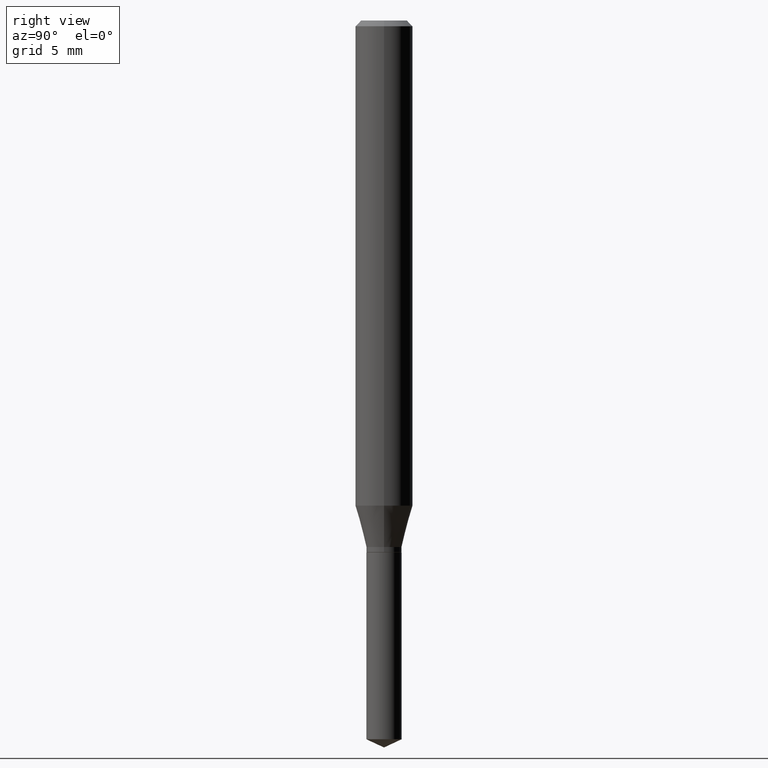
[diagram: clean part render]
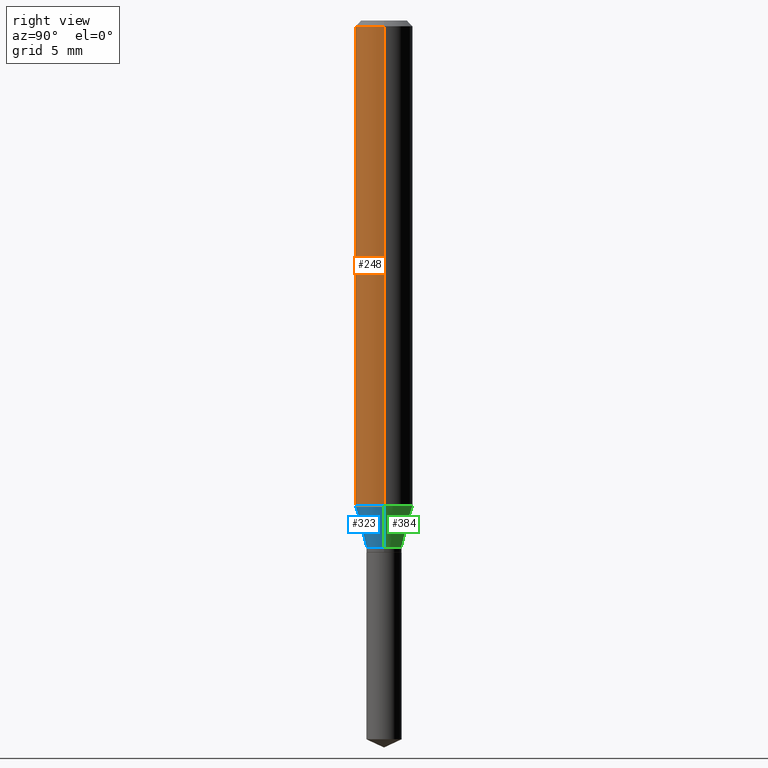
[diagram: same view with three faces highlighted in distinct colors, each labeled with its STEP entity id]
A machine part, right view with three faces highlighted in distinct colors.
Their STEP definitions:

[orange] entity #248 — the highlighted cylindrical surface (edge-blend (fillet) strip) has radius 1.4999 mm, axis along (-0, 0, 1).
#11 = EDGE_CURVE ( 'NONE', #403, #477, #388, .T. ) ;
#17 = ORIENTED_EDGE ( 'NONE', *, *, #64, .F. ) ;
#22 = VERTEX_POINT ( 'NONE', #79 ) ;
#47 = DIRECTION ( 'NONE',  ( -2.445468806185136877E-29, 3.491481338843145188E-15, 1.000000000000000000 ) ) ;
#64 = EDGE_CURVE ( 'NONE', #403, #22, #241, .T. ) ;
#79 = CARTESIAN_POINT ( 'NONE',  ( -0.05904999999999999832, -1.343854144028238123E-15, -0.01181000000000007044 ) ) ;
#83 = FACE_OUTER_BOUND ( 'NONE', #417, .T. ) ;
#94 = EDGE_CURVE ( 'NONE', #22, #375, #469, .T. ) ;
#98 = CARTESIAN_POINT ( 'NONE',  ( -0.05905000000000011628, -3.066049378911078798E-15, -0.9983226390470507638 ) ) ;
#109 = CARTESIAN_POINT ( 'NONE',  ( 0.05905000000000011628, -3.897968810494794000E-15, -0.9983226390470507638 ) ) ;
#117 = ORIENTED_EDGE ( 'NONE', *, *, #210, .T. ) ;
#124 = CARTESIAN_POINT ( 'NONE',  ( 0.05905000000000006077, -4.123439461173744764E-16, 2.879382386107503023E-30 ) ) ;
#125 = DIRECTION ( 'NONE',  ( -2.445468806185136597E-29, 3.491481338843145583E-15, 1.000000000000000000 ) ) ;
#138 = DIRECTION ( 'NONE',  ( 1.000000000000000000, -6.982962677686266711E-15, 4.876176775795935793E-29 ) ) ;
#157 = AXIS2_PLACEMENT_3D ( 'NONE', #397, #439, #138 ) ;
#158 = CARTESIAN_POINT ( 'NONE',  ( -0.05905000000000006077, 4.195754854663395916E-16, -2.904631170795524694E-30 ) ) ;
#189 = VECTOR ( 'NONE', #47, 39.37007874015748143 ) ;
#203 = LINE ( 'NONE', #124, #356 ) ;
#210 = EDGE_CURVE ( 'NONE', #477, #375, #203, .T. ) ;
#241 = LINE ( 'NONE', #158, #189 ) ;
#248 = ADVANCED_FACE ( 'NONE', ( #83 ), #351, .T. ) ;
#250 = AXIS2_PLACEMENT_3D ( 'NONE', #463, #125, #466 ) ;
#261 = ORIENTED_EDGE ( 'NONE', *, *, #11, .T. ) ;
#270 = DIRECTION ( 'NONE',  ( -2.445468806185136597E-29, 3.491481338843145583E-15, 1.000000000000000000 ) ) ;
#278 = DIRECTION ( 'NONE',  ( -2.445468806185136877E-29, 3.491481338843145188E-15, 1.000000000000000000 ) ) ;
#299 = ORIENTED_EDGE ( 'NONE', *, *, #94, .F. ) ;
#351 = CYLINDRICAL_SURFACE ( 'NONE', #157, 0.05905000000000006077 ) ;
#356 = VECTOR ( 'NONE', #278, 39.37007874015748143 ) ;
#363 = CARTESIAN_POINT ( 'NONE',  ( 0.05904999999999999832, -4.535783407291118600E-16, -0.01181000000000007044 ) ) ;
#364 = AXIS2_PLACEMENT_3D ( 'NONE', #382, #270, #490 ) ;
#375 = VERTEX_POINT ( 'NONE', #363 ) ;
#382 = CARTESIAN_POINT ( 'NONE',  ( 2.441366872297986055E-29, -3.485624864377419475E-15, -0.9983226390470507638 ) ) ;
#388 = CIRCLE ( 'NONE', #364, 0.05905000000000011628 ) ;
#397 = CARTESIAN_POINT ( 'NONE',  ( 0.000000000000000000, 0.000000000000000000, 0.000000000000000000 ) ) ;
#403 = VERTEX_POINT ( 'NONE', #98 ) ;
#417 = EDGE_LOOP ( 'NONE', ( #17, #261, #117, #299 ) ) ;
#439 = DIRECTION ( 'NONE',  ( -2.445468806185136597E-29, 3.491481338843145583E-15, 1.000000000000000000 ) ) ;
#463 = CARTESIAN_POINT ( 'NONE',  ( 2.888098660104663766E-31, -4.123439461173779647E-17, -0.01181000000000007044 ) ) ;
#466 = DIRECTION ( 'NONE',  ( 1.000000000000000000, -6.982962677686266711E-15, 0.000000000000000000 ) ) ;
#469 = CIRCLE ( 'NONE', #250, 0.05904999999999999832 ) ;
#477 = VERTEX_POINT ( 'NONE', #109 ) ;
#490 = DIRECTION ( 'NONE',  ( 1.000000000000000000, -6.982962677686266711E-15, 0.000000000000000000 ) ) ;

[blue] entity #323 — the highlighted conical surface has half-angle 15 deg.
#10 = DIRECTION ( 'NONE',  ( 0.2588190451025211836, 1.565188264969622559E-15, 0.9659258262890679791 ) ) ;
#11 = EDGE_CURVE ( 'NONE', #403, #477, #388, .T. ) ;
#20 = AXIS2_PLACEMENT_3D ( 'NONE', #377, #263, #262 ) ;
#41 = CARTESIAN_POINT ( 'NONE',  ( -0.03620000000000000301, -3.526152708425275685E-15, -1.083599999999999897 ) ) ;
#52 = FACE_OUTER_BOUND ( 'NONE', #228, .T. ) ;
#54 = EDGE_CURVE ( 'NONE', #268, #403, #288, .T. ) ;
#58 = CONICAL_SURFACE ( 'NONE', #224, 0.03620000000000000301, 0.2617993877991499074 ) ;
#76 = VECTOR ( 'NONE', #127, 39.37007874015748854 ) ;
#98 = CARTESIAN_POINT ( 'NONE',  ( -0.05905000000000011628, -3.066049378911078798E-15, -0.9983226390470507638 ) ) ;
#102 = CARTESIAN_POINT ( 'NONE',  ( 2.649909998382213991E-29, -3.783369178770431629E-15, -1.083599999999999897 ) ) ;
#103 = ORIENTED_EDGE ( 'NONE', *, *, #11, .F. ) ;
#109 = CARTESIAN_POINT ( 'NONE',  ( 0.05905000000000011628, -3.897968810494794000E-15, -0.9983226390470507638 ) ) ;
#127 = DIRECTION ( 'NONE',  ( -0.2588190451025211836, 5.211531920934547886E-15, 0.9659258262890679791 ) ) ;
#173 = DIRECTION ( 'NONE',  ( 1.000000000000000000, -6.982962677686262766E-15, 0.000000000000000000 ) ) ;
#193 = EDGE_CURVE ( 'NONE', #412, #477, #355, .T. ) ;
#222 = ORIENTED_EDGE ( 'NONE', *, *, #193, .T. ) ;
#224 = AXIS2_PLACEMENT_3D ( 'NONE', #102, #361, #173 ) ;
#228 = EDGE_LOOP ( 'NONE', ( #443, #421, #222, #103 ) ) ;
#252 = CARTESIAN_POINT ( 'NONE',  ( -0.03620000000000000301, -3.544308411387259717E-15, -1.083599999999999897 ) ) ;
#262 = DIRECTION ( 'NONE',  ( 1.000000000000000000, -6.982962677686262766E-15, 0.000000000000000000 ) ) ;
#263 = DIRECTION ( 'NONE',  ( -2.445468806185136597E-29, 3.491481338843145583E-15, 1.000000000000000000 ) ) ;
#268 = VERTEX_POINT ( 'NONE', #252 ) ;
#270 = DIRECTION ( 'NONE',  ( -2.445468806185136597E-29, 3.491481338843145583E-15, 1.000000000000000000 ) ) ;
#288 = LINE ( 'NONE', #41, #76 ) ;
#316 = CARTESIAN_POINT ( 'NONE',  ( 0.03620000000000000301, -4.036152427702674812E-15, -1.083599999999999897 ) ) ;
#323 = ADVANCED_FACE ( 'NONE', ( #52 ), #58, .T. ) ;
#355 = LINE ( 'NONE', #316, #440 ) ;
#361 = DIRECTION ( 'NONE',  ( -2.445468806185136597E-29, 3.491481338843145583E-15, 1.000000000000000000 ) ) ;
#364 = AXIS2_PLACEMENT_3D ( 'NONE', #382, #270, #490 ) ;
#374 = CARTESIAN_POINT ( 'NONE',  ( 0.03620000000000000301, -4.036152427702674812E-15, -1.083599999999999897 ) ) ;
#377 = CARTESIAN_POINT ( 'NONE',  ( 2.649909998382213991E-29, -3.783369178770431629E-15, -1.083599999999999897 ) ) ;
#382 = CARTESIAN_POINT ( 'NONE',  ( 2.441366872297986055E-29, -3.485624864377419475E-15, -0.9983226390470507638 ) ) ;
#388 = CIRCLE ( 'NONE', #364, 0.05905000000000011628 ) ;
#389 = CIRCLE ( 'NONE', #20, 0.03620000000000000301 ) ;
#403 = VERTEX_POINT ( 'NONE', #98 ) ;
#412 = VERTEX_POINT ( 'NONE', #374 ) ;
#421 = ORIENTED_EDGE ( 'NONE', *, *, #468, .T. ) ;
#440 = VECTOR ( 'NONE', #10, 39.37007874015748854 ) ;
#443 = ORIENTED_EDGE ( 'NONE', *, *, #54, .F. ) ;
#468 = EDGE_CURVE ( 'NONE', #268, #412, #389, .T. ) ;
#477 = VERTEX_POINT ( 'NONE', #109 ) ;
#490 = DIRECTION ( 'NONE',  ( 1.000000000000000000, -6.982962677686266711E-15, 0.000000000000000000 ) ) ;

[green] entity #384 — the highlighted conical surface has half-angle 15 deg.
#4 = AXIS2_PLACEMENT_3D ( 'NONE', #257, #133, #23 ) ;
#10 = DIRECTION ( 'NONE',  ( 0.2588190451025211836, 1.565188264969622559E-15, 0.9659258262890679791 ) ) ;
#13 = CONICAL_SURFACE ( 'NONE', #38, 0.03620000000000000301, 0.2617993877991499074 ) ;
#23 = DIRECTION ( 'NONE',  ( 1.000000000000000000, -6.982962677686266711E-15, 0.000000000000000000 ) ) ;
#25 = FACE_OUTER_BOUND ( 'NONE', #328, .T. ) ;
#38 = AXIS2_PLACEMENT_3D ( 'NONE', #179, #332, #55 ) ;
#41 = CARTESIAN_POINT ( 'NONE',  ( -0.03620000000000000301, -3.526152708425275685E-15, -1.083599999999999897 ) ) ;
#54 = EDGE_CURVE ( 'NONE', #268, #403, #288, .T. ) ;
#55 = DIRECTION ( 'NONE',  ( 1.000000000000000000, -6.982962677686262766E-15, 0.000000000000000000 ) ) ;
#74 = DIRECTION ( 'NONE',  ( -2.445468806185136597E-29, 3.491481338843145583E-15, 1.000000000000000000 ) ) ;
#75 = ORIENTED_EDGE ( 'NONE', *, *, #287, .F. ) ;
#76 = VECTOR ( 'NONE', #127, 39.37007874015748854 ) ;
#98 = CARTESIAN_POINT ( 'NONE',  ( -0.05905000000000011628, -3.066049378911078798E-15, -0.9983226390470507638 ) ) ;
#109 = CARTESIAN_POINT ( 'NONE',  ( 0.05905000000000011628, -3.897968810494794000E-15, -0.9983226390470507638 ) ) ;
#127 = DIRECTION ( 'NONE',  ( -0.2588190451025211836, 5.211531920934547886E-15, 0.9659258262890679791 ) ) ;
#133 = DIRECTION ( 'NONE',  ( -2.445468806185136597E-29, 3.491481338843145583E-15, 1.000000000000000000 ) ) ;
#178 = ORIENTED_EDGE ( 'NONE', *, *, #193, .F. ) ;
#179 = CARTESIAN_POINT ( 'NONE',  ( 2.649909998382213991E-29, -3.783369178770431629E-15, -1.083599999999999897 ) ) ;
#190 = CARTESIAN_POINT ( 'NONE',  ( 2.649909998382213991E-29, -3.783369178770431629E-15, -1.083599999999999897 ) ) ;
#193 = EDGE_CURVE ( 'NONE', #412, #477, #355, .T. ) ;
#214 = CIRCLE ( 'NONE', #471, 0.03620000000000000301 ) ;
#252 = CARTESIAN_POINT ( 'NONE',  ( -0.03620000000000000301, -3.544308411387259717E-15, -1.083599999999999897 ) ) ;
#257 = CARTESIAN_POINT ( 'NONE',  ( 2.441366872297986055E-29, -3.485624864377419475E-15, -0.9983226390470507638 ) ) ;
#268 = VERTEX_POINT ( 'NONE', #252 ) ;
#287 = EDGE_CURVE ( 'NONE', #477, #403, #418, .T. ) ;
#288 = LINE ( 'NONE', #41, #76 ) ;
#290 = ORIENTED_EDGE ( 'NONE', *, *, #54, .T. ) ;
#303 = DIRECTION ( 'NONE',  ( 1.000000000000000000, -6.982962677686262766E-15, 0.000000000000000000 ) ) ;
#316 = CARTESIAN_POINT ( 'NONE',  ( 0.03620000000000000301, -4.036152427702674812E-15, -1.083599999999999897 ) ) ;
#328 = EDGE_LOOP ( 'NONE', ( #472, #290, #75, #178 ) ) ;
#332 = DIRECTION ( 'NONE',  ( -2.445468806185136597E-29, 3.491481338843145583E-15, 1.000000000000000000 ) ) ;
#355 = LINE ( 'NONE', #316, #440 ) ;
#374 = CARTESIAN_POINT ( 'NONE',  ( 0.03620000000000000301, -4.036152427702674812E-15, -1.083599999999999897 ) ) ;
#384 = ADVANCED_FACE ( 'NONE', ( #25 ), #13, .T. ) ;
#403 = VERTEX_POINT ( 'NONE', #98 ) ;
#412 = VERTEX_POINT ( 'NONE', #374 ) ;
#415 = EDGE_CURVE ( 'NONE', #412, #268, #214, .T. ) ;
#418 = CIRCLE ( 'NONE', #4, 0.05905000000000011628 ) ;
#440 = VECTOR ( 'NONE', #10, 39.37007874015748854 ) ;
#471 = AXIS2_PLACEMENT_3D ( 'NONE', #190, #74, #303 ) ;
#472 = ORIENTED_EDGE ( 'NONE', *, *, #415, .T. ) ;
#477 = VERTEX_POINT ( 'NONE', #109 ) ;